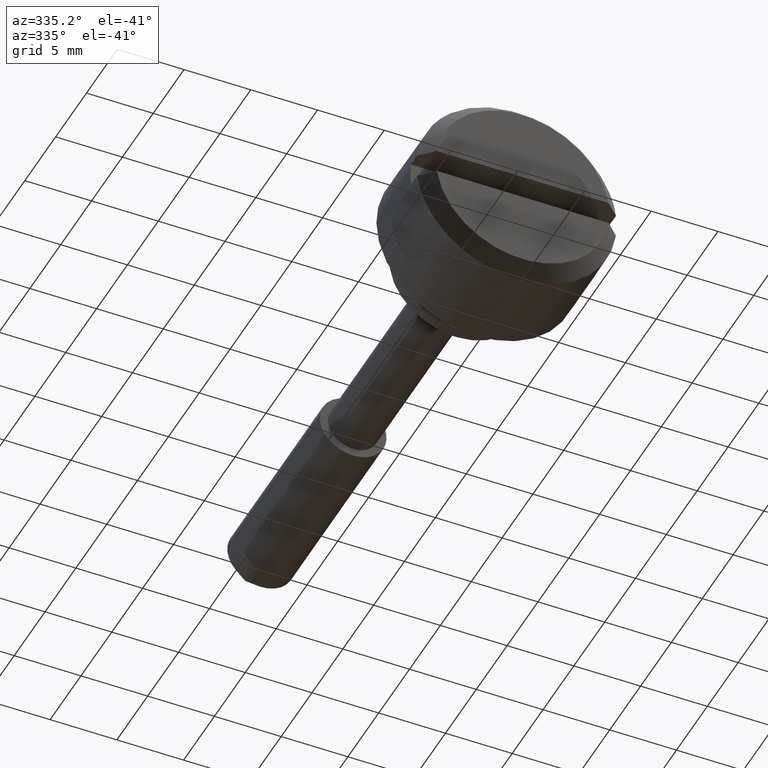
[diagram: clean part render]
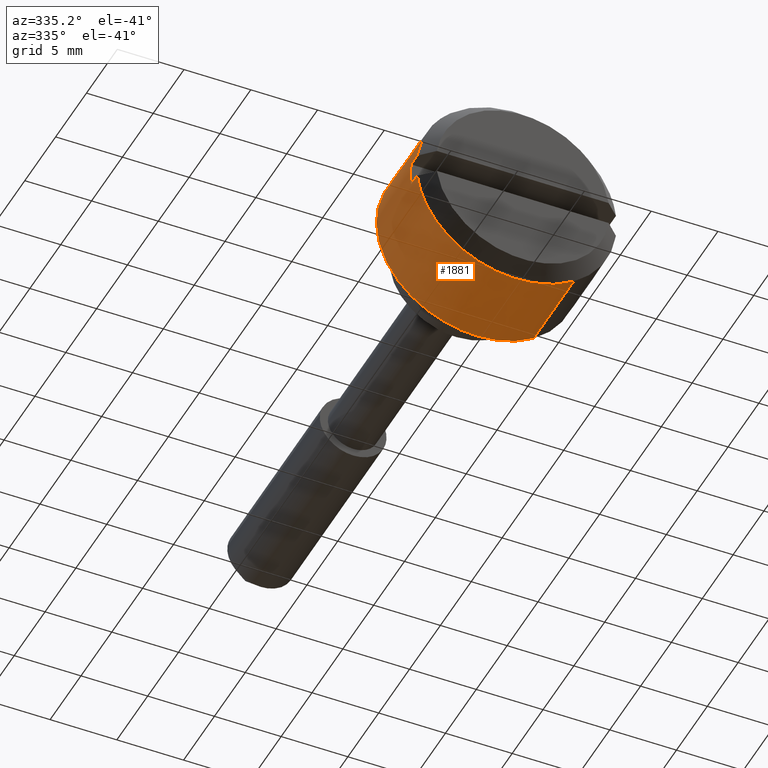
[diagram: same view with one face highlighted and labeled with its STEP entity id]
A machine part, auxiliary view. The second image highlights one B-rep face of the part: STEP entity #1881.
In plain terms, the highlighted face is a freeform B-spline surface patch.
Its self-contained STEP definition (entity closure, byte-faithful):
#1457=CARTESIAN_POINT('',(-2.500000000002467,7.499714422983645,-0.065449016256269));
#1458=VERTEX_POINT('',#1457);
#1464=CARTESIAN_POINT('',(-2.499999999999944,4.969649688625295,5.617168501331046));
#1465=VERTEX_POINT('',#1464);
#1466=CARTESIAN_POINT('',(-2.499999999999943,4.969649688625295,5.617168501331046));
#1467=CARTESIAN_POINT('',(-2.499999999999945,7.500000000000000,3.378504733595118));
#1468=CARTESIAN_POINT('',(-2.499999999999945,7.500000000000000,0.0));
#1469=CARTESIAN_POINT('',(-2.499999999999945,7.499999999999999,-0.032725131173713));
#1470=CARTESIAN_POINT('',(-2.500000000002466,7.499714422983645,-0.065449016256269));
#1478=(BOUNDED_CURVE()B_SPLINE_CURVE(2,(#1466,#1467,#1468,#1469,#1470),.UNSPECIFIED.,.F.,.U.)B_SPLINE_CURVE_WITH_KNOTS((3,2,3),(0.615779851869967,0.750000000000000,0.751539894335854),.UNSPECIFIED.)CURVE()GEOMETRIC_REPRESENTATION_ITEM()RATIONAL_B_SPLINE_CURVE((0.854350164479727,0.842751315138305,1.0,0.998195901565357,0.996414028098400))REPRESENTATION_ITEM(''));
#1479=EDGE_CURVE('',#1465,#1458,#1478,.T.);
#1515=CARTESIAN_POINT('',(-2.499999999999945,-4.287826384597409,-6.153417334744582));
#1516=VERTEX_POINT('',#1515);
#1532=CARTESIAN_POINT('',(-2.499999999999945,0.0,-7.500000000000000));
#1533=VERTEX_POINT('',#1532);
#1534=CARTESIAN_POINT('',(-2.499999999999945,0.0,-7.500000000000000));
#1535=CARTESIAN_POINT('',(-2.499999999999945,-2.355358888990157,-7.500000000000000));
#1536=CARTESIAN_POINT('',(-2.499999999999945,-4.287826384597409,-6.153417334744582));
#1544=(BOUNDED_CURVE()B_SPLINE_CURVE(2,(#1534,#1535,#1536),.UNSPECIFIED.,.F.,.U.)B_SPLINE_CURVE_WITH_KNOTS((3,3),(0.0,0.098251805112682),.UNSPECIFIED.)CURVE()GEOMETRIC_REPRESENTATION_ITEM()RATIONAL_B_SPLINE_CURVE((1.0,0.884890850185258,0.860259154404792))REPRESENTATION_ITEM(''));
#1545=EDGE_CURVE('',#1533,#1516,#1544,.T.);
#1547=CARTESIAN_POINT('',(-2.500000000002467,7.499714422983645,-0.065449016256269));
#1548=CARTESIAN_POINT('',(-2.499999999999945,7.434834079425768,-7.499999999999999));
#1549=CARTESIAN_POINT('',(-2.499999999999945,0.0,-7.500000000000000));
#1557=(BOUNDED_CURVE()B_SPLINE_CURVE(2,(#1547,#1548,#1549),.UNSPECIFIED.,.F.,.U.)B_SPLINE_CURVE_WITH_KNOTS((3,3),(0.751539894335853,1.0),.UNSPECIFIED.)CURVE()GEOMETRIC_REPRESENTATION_ITEM()RATIONAL_B_SPLINE_CURVE((0.996414028098401,0.708910879621190,1.0))REPRESENTATION_ITEM(''));
#1558=EDGE_CURVE('',#1458,#1533,#1557,.T.);
#1785=CARTESIAN_POINT('',(-9.162397500000004,-4.287829581630136,-6.153415106987136));
#1786=CARTESIAN_POINT('',(-9.162397500000006,1.191735502885045,-9.971691763989039));
#1787=CARTESIAN_POINT('',(-9.162397500000004,5.617167905917516,-4.969650361618027));
#1788=CARTESIAN_POINT('',(-9.162397500000004,10.586818267535543,0.647517544299490));
#1789=CARTESIAN_POINT('',(-9.162397500000004,4.969650361618027,5.617167905917516));
#1790=CARTESIAN_POINT('',(-2.333440062499944,-4.287829581630136,-6.153415106987136));
#1791=CARTESIAN_POINT('',(-2.333440062499943,1.191735502885045,-9.971691763989039));
#1792=CARTESIAN_POINT('',(-2.333440062499943,5.617167905917516,-4.969650361618027));
#1793=CARTESIAN_POINT('',(-2.333440062499943,10.586818267535543,0.647517544299490));
#1794=CARTESIAN_POINT('',(-2.333440062499943,4.969650361618027,5.617167905917516));
#1802=(BOUNDED_SURFACE()B_SPLINE_SURFACE(2,1,((#1785,#1790),(#1786,#1791),(#1787,#1792),(#1788,#1793),(#1789,#1794)),.UNSPECIFIED.,.F.,.F.,.U.)B_SPLINE_SURFACE_WITH_KNOTS((3,2,3),(2,2),(0.0,11.432294321497420,23.858701192690258),(0.0,6.828957437500062),.UNSPECIFIED.)GEOMETRIC_REPRESENTATION_ITEM()RATIONAL_B_SPLINE_SURFACE(((0.956886118190660,0.956886118190660),(0.730538238691624,0.730538238691624),(1.0,1.0),(0.707106781186548,0.707106781186548),(1.0,1.0)))REPRESENTATION_ITEM('')SURFACE());
#1803=CARTESIAN_POINT('',(-8.999899999999949,-4.287828225839812,-6.153416051730019));
#1804=VERTEX_POINT('',#1803);
#1805=CARTESIAN_POINT('',(-8.999900000000000,7.445804187594519,-0.900000000000000));
#1806=VERTEX_POINT('',#1805);
#1807=CARTESIAN_POINT('',(-8.999899999999949,-4.287828225839812,-6.153416051730019));
#1808=CARTESIAN_POINT('',(-8.999900000000002,-2.355360121742149,-7.500000000000000));
#1809=CARTESIAN_POINT('',(-8.999900000000000,0.0,-7.500000000000000));
#1810=CARTESIAN_POINT('',(-8.999900000000002,6.648039453209386,-7.499999999999999));
#1811=CARTESIAN_POINT('',(-8.999900000000000,7.445804187594514,-0.900000000000002));
#1819=(BOUNDED_CURVE()B_SPLINE_CURVE(2,(#1807,#1808,#1809,#1810,#1811),.UNSPECIFIED.,.F.,.U.)B_SPLINE_CURVE_WITH_KNOTS((3,2,3),(0.288480244888014,0.500000000000000,1.0),.UNSPECIFIED.)CURVE()GEOMETRIC_REPRESENTATION_ITEM()RATIONAL_B_SPLINE_CURVE((0.877146962212913,0.893534271441379,1.0,0.748331477354788,1.0))REPRESENTATION_ITEM(''));
#1820=EDGE_CURVE('',#1804,#1806,#1819,.T.);
#1821=ORIENTED_EDGE('',*,*,#1820,.T.);
#1822=CARTESIAN_POINT('',(-7.999900000000001,7.445804187594550,-0.900000000000000));
#1823=VERTEX_POINT('',#1822);
#1824=CARTESIAN_POINT('',(-8.999900000000000,7.445804187594519,-0.900000000000000));
#1825=CARTESIAN_POINT('',(-7.999900000000001,7.445804187594550,-0.900000000000000));
#1826=QUASI_UNIFORM_CURVE('',1,(#1824,#1825),.UNSPECIFIED.,.F.,.U.);
#1827=EDGE_CURVE('',#1806,#1823,#1826,.T.);
#1828=ORIENTED_EDGE('',*,*,#1827,.T.);
#1829=CARTESIAN_POINT('',(-7.999900000000001,7.445804187594519,0.900000000000000));
#1830=VERTEX_POINT('',#1829);
#1831=CARTESIAN_POINT('',(-7.999900000000001,7.445804187594550,-0.900000000000000));
#1832=CARTESIAN_POINT('',(-7.999900000000001,7.554590287737940,-2.710505E-015));
#1833=CARTESIAN_POINT('',(-7.999900000000001,7.445804187594514,0.899999999999998));
#1841=(BOUNDED_CURVE()B_SPLINE_CURVE(2,(#1831,#1832,#1833),.UNSPECIFIED.,.F.,.U.)CURVE()GEOMETRIC_REPRESENTATION_ITEM()QUASI_UNIFORM_CURVE()RATIONAL_B_SPLINE_CURVE((1.0,0.992773891679269,1.0))REPRESENTATION_ITEM(''));
#1842=EDGE_CURVE('',#1823,#1830,#1841,.T.);
#1843=ORIENTED_EDGE('',*,*,#1842,.T.);
#1844=CARTESIAN_POINT('',(-8.999900000000000,7.445804187594519,0.900000000000000));
#1845=VERTEX_POINT('',#1844);
#1846=CARTESIAN_POINT('',(-7.999900000000001,7.445804187594519,0.900000000000000));
#1847=CARTESIAN_POINT('',(-8.999900000000000,7.445804187594519,0.900000000000000));
#1848=QUASI_UNIFORM_CURVE('',1,(#1846,#1847),.UNSPECIFIED.,.F.,.U.);
#1849=EDGE_CURVE('',#1830,#1845,#1848,.T.);
#1850=ORIENTED_EDGE('',*,*,#1849,.T.);
#1851=CARTESIAN_POINT('',(-8.999900000000013,4.969650341392859,5.617167923811234));
#1852=VERTEX_POINT('',#1851);
#1853=CARTESIAN_POINT('',(-8.999900000000000,7.445804187594514,0.899999999999999));
#1854=CARTESIAN_POINT('',(-8.999900000000000,7.103855276699771,3.728982925203841));
#1855=CARTESIAN_POINT('',(-8.999900000000013,4.969650341392859,5.617167923811234));
#1863=(BOUNDED_CURVE()B_SPLINE_CURVE(2,(#1853,#1854,#1855),.UNSPECIFIED.,.F.,.U.)B_SPLINE_CURVE_WITH_KNOTS((3,3),(0.0,0.250310219604464),.UNSPECIFIED.)CURVE()GEOMETRIC_REPRESENTATION_ITEM()RATIONAL_B_SPLINE_CURVE((1.0,0.874009593658292,0.874165932434378))REPRESENTATION_ITEM(''));
#1864=EDGE_CURVE('',#1845,#1852,#1863,.T.);
#1865=ORIENTED_EDGE('',*,*,#1864,.T.);
#1866=CARTESIAN_POINT('',(-8.999900000000013,4.969650341392859,5.617167923811234));
#1867=CARTESIAN_POINT('',(-2.499999999999944,4.969649688625295,5.617168501331046));
#1868=QUASI_UNIFORM_CURVE('',1,(#1866,#1867),.UNSPECIFIED.,.F.,.U.);
#1869=EDGE_CURVE('',#1852,#1465,#1868,.T.);
#1870=ORIENTED_EDGE('',*,*,#1869,.T.);
#1871=ORIENTED_EDGE('',*,*,#1479,.T.);
#1872=ORIENTED_EDGE('',*,*,#1558,.T.);
#1873=ORIENTED_EDGE('',*,*,#1545,.T.);
#1874=CARTESIAN_POINT('',(-8.999899999999949,-4.287828225839812,-6.153416051730019));
#1875=CARTESIAN_POINT('',(-2.499999999999945,-4.287826384597409,-6.153417334744582));
#1876=QUASI_UNIFORM_CURVE('',1,(#1874,#1875),.UNSPECIFIED.,.F.,.U.);
#1877=EDGE_CURVE('',#1804,#1516,#1876,.T.);
#1878=ORIENTED_EDGE('',*,*,#1877,.F.);
#1879=EDGE_LOOP('',(#1821,#1828,#1843,#1850,#1865,#1870,#1871,#1872,#1873,#1878));
#1880=FACE_OUTER_BOUND('',#1879,.T.);
#1881=ADVANCED_FACE('',(#1880),#1802,.T.);